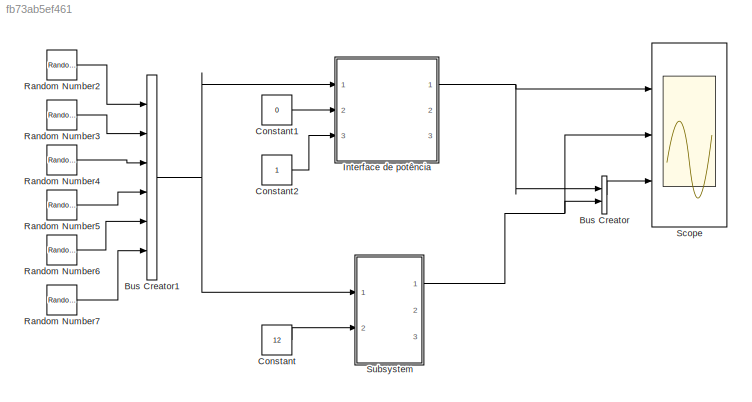
MODEL slx_fb73ab5ef461
KIND model
BLOCK [BusCreator] Bus Creator
  DisplayOption = bar
  Inputs = 2
  Ports = [2, 1]
BLOCK [BusCreator] Bus Creator1
  DisplayOption = bar
  Inputs = 6
  Ports = [6, 1]
BLOCK [Constant] Constant
  Value = 12
BLOCK [Constant] Constant1
  Value = 0
BLOCK [Constant] Constant2
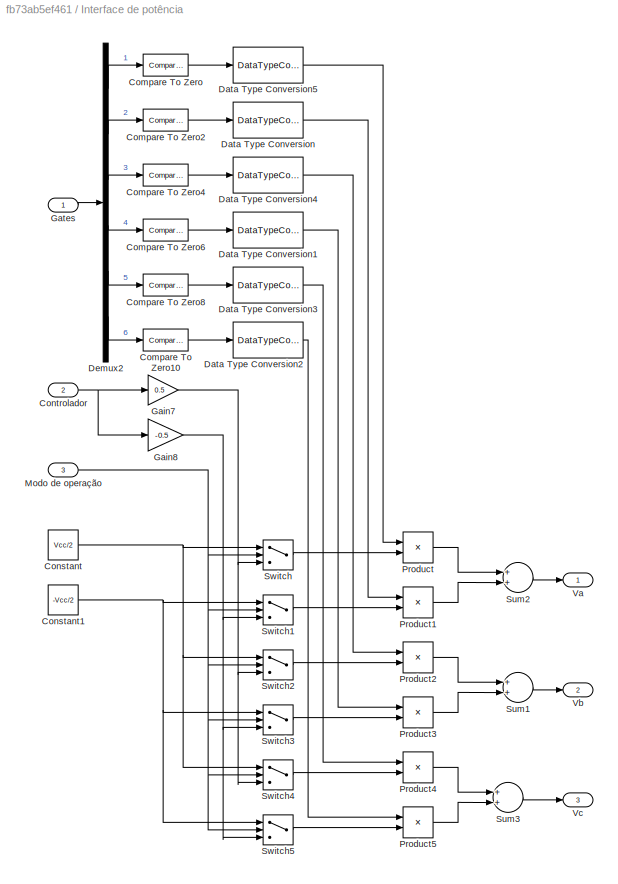
BLOCK [SubSystem] Interface de potência
  FunctionWithSeparateData = off
  MaskHideContents = off
  MinAlgLoopOccurrences = off
  Opaque = off
  Ports = [3, 3]
  PropExecContextOutsideSubsystem = off
  RTWSystemCode = Auto
  RequestExecContextInheritance = off
BLOCK [Reference] Interface de potência/Compare To Zero  REF=simulink/Logic and Bit
Operations/Compare
To Zero
  OutDataTypeStr = uint8
  Ports = [1, 1]
  SourceBlock = simulink/Logic and Bit\nOperations/Compare\nTo Zero
  SourceType = Compare To Zero
  ZeroCross = off
  relop = >
BLOCK [Reference] Interface de potência/Compare To Zero10  REF=simulink/Logic and Bit
Operations/Compare
To Zero
  OutDataTypeStr = boolean
  Ports = [1, 1]
  SourceBlock = simulink/Logic and Bit\nOperations/Compare\nTo Zero
  SourceType = Compare To Zero
  ZeroCross = off
  relop = >
BLOCK [Reference] Interface de potência/Compare To Zero2  REF=simulink/Logic and Bit
Operations/Compare
To Zero
  OutDataTypeStr = boolean
  Ports = [1, 1]
  SourceBlock = simulink/Logic and Bit\nOperations/Compare\nTo Zero
  SourceType = Compare To Zero
  ZeroCross = off
  relop = >
BLOCK [Reference] Interface de potência/Compare To Zero4  REF=simulink/Logic and Bit
Operations/Compare
To Zero
  OutDataTypeStr = uint8
  Ports = [1, 1]
  SourceBlock = simulink/Logic and Bit\nOperations/Compare\nTo Zero
  SourceType = Compare To Zero
  ZeroCross = off
  relop = >
BLOCK [Reference] Interface de potência/Compare To Zero6  REF=simulink/Logic and Bit
Operations/Compare
To Zero
  OutDataTypeStr = boolean
  Ports = [1, 1]
  SourceBlock = simulink/Logic and Bit\nOperations/Compare\nTo Zero
  SourceType = Compare To Zero
  ZeroCross = off
  relop = >
BLOCK [Reference] Interface de potência/Compare To Zero8  REF=simulink/Logic and Bit
Operations/Compare
To Zero
  OutDataTypeStr = boolean
  Ports = [1, 1]
  SourceBlock = simulink/Logic and Bit\nOperations/Compare\nTo Zero
  SourceType = Compare To Zero
  ZeroCross = off
  relop = >
BLOCK [Constant] Interface de potência/Constant
  Value = Vcc/2
BLOCK [Constant] Interface de potência/Constant1
  Value = -Vcc/2
BLOCK [Inport] Interface de potência/Controlador
  IconDisplay = Port number
  Port = 2
BLOCK [DataTypeConversion] Interface de potência/Data Type Conversion
  OutDataTypeStr = double
  RndMeth = Floor
  SaturateOnIntegerOverflow = off
BLOCK [DataTypeConversion] Interface de potência/Data Type Conversion1
  OutDataTypeStr = double
  RndMeth = Floor
  SaturateOnIntegerOverflow = off
BLOCK [DataTypeConversion] Interface de potência/Data Type Conversion2
  OutDataTypeStr = double
  RndMeth = Floor
  SaturateOnIntegerOverflow = off
BLOCK [DataTypeConversion] Interface de potência/Data Type Conversion3
  OutDataTypeStr = double
  RndMeth = Floor
  SaturateOnIntegerOverflow = off
BLOCK [DataTypeConversion] Interface de potência/Data Type Conversion4
  OutDataTypeStr = double
  RndMeth = Floor
  SaturateOnIntegerOverflow = off
BLOCK [DataTypeConversion] Interface de potência/Data Type Conversion5
  OutDataTypeStr = double
  RndMeth = Floor
  SaturateOnIntegerOverflow = off
BLOCK [Demux] Interface de potência/Demux2
  DisplayOption = bar
  Outputs = 6
  Ports = [1, 6]
BLOCK [Gain] Interface de potência/Gain7
  Gain = 0.5
  OutDataTypeStr = Inherit: Inherit via internal rule
  ParamDataTypeStr = Inherit: Inherit via internal rule
  SaturateOnIntegerOverflow = off
BLOCK [Gain] Interface de potência/Gain8
  Gain = -0.5
  OutDataTypeStr = Inherit: Inherit via internal rule
  ParamDataTypeStr = Inherit: Inherit via internal rule
  SaturateOnIntegerOverflow = off
BLOCK [Inport] Interface de potência/Gates
  IconDisplay = Port number
BLOCK [Inport] Interface de potência/Modo de operação
  IconDisplay = Port number
  Port = 3
BLOCK [Product] Interface de potência/Product
  InputSameDT = off
  OutDataTypeStr = Inherit: Inherit via internal rule
  Ports = [2, 1]
  SaturateOnIntegerOverflow = off
BLOCK [Product] Interface de potência/Product1
  InputSameDT = off
  OutDataTypeStr = Inherit: Inherit via internal rule
  Ports = [2, 1]
  SaturateOnIntegerOverflow = off
BLOCK [Product] Interface de potência/Product2
  InputSameDT = off
  OutDataTypeStr = Inherit: Inherit via internal rule
  Ports = [2, 1]
  SaturateOnIntegerOverflow = off
BLOCK [Product] Interface de potência/Product3
  InputSameDT = off
  OutDataTypeStr = Inherit: Inherit via internal rule
  Ports = [2, 1]
  SaturateOnIntegerOverflow = off
BLOCK [Product] Interface de potência/Product4
  InputSameDT = off
  OutDataTypeStr = Inherit: Inherit via internal rule
  Ports = [2, 1]
  SaturateOnIntegerOverflow = off
BLOCK [Product] Interface de potência/Product5
  InputSameDT = off
  OutDataTypeStr = Inherit: Inherit via internal rule
  Ports = [2, 1]
  SaturateOnIntegerOverflow = off
BLOCK [Sum] Interface de potência/Sum1
  InputSameDT = off
  OutDataTypeStr = Inherit: Inherit via internal rule
  Ports = [2, 1]
BLOCK [Sum] Interface de potência/Sum2
  InputSameDT = off
  OutDataTypeStr = Inherit: Inherit via internal rule
  Ports = [2, 1]
BLOCK [Sum] Interface de potência/Sum3
  InputSameDT = off
  OutDataTypeStr = Inherit: Inherit via internal rule
  Ports = [2, 1]
BLOCK [Switch] Interface de potência/Switch
  Criteria = u2 > Threshold
  InputSameDT = off
  SaturateOnIntegerOverflow = off
BLOCK [Switch] Interface de potência/Switch1
  Criteria = u2 > Threshold
  InputSameDT = off
  SaturateOnIntegerOverflow = off
BLOCK [Switch] Interface de potência/Switch2
  Criteria = u2 > Threshold
  InputSameDT = off
  SaturateOnIntegerOverflow = off
BLOCK [Switch] Interface de potência/Switch3
  Criteria = u2 > Threshold
  InputSameDT = off
  SaturateOnIntegerOverflow = off
BLOCK [Switch] Interface de potência/Switch4
  Criteria = u2 > Threshold
  InputSameDT = off
  SaturateOnIntegerOverflow = off
BLOCK [Switch] Interface de potência/Switch5
  Criteria = u2 > Threshold
  InputSameDT = off
  SaturateOnIntegerOverflow = off
BLOCK [Outport] Interface de potência/Va
  IconDisplay = Port number
BLOCK [Outport] Interface de potência/Vb
  IconDisplay = Port number
  Port = 2
BLOCK [Outport] Interface de potência/Vc
  IconDisplay = Port number
  Port = 3
BLOCK [RandomNumber] Random Number2
  SampleTime = 0.1
  Variance = 20
BLOCK [RandomNumber] Random Number3
  SampleTime = 0.1
  Seed = 1
  Variance = 20
BLOCK [RandomNumber] Random Number4
  SampleTime = 0.1
  Seed = 2
  Variance = 20
BLOCK [RandomNumber] Random Number5
  SampleTime = 0.1
  Seed = 3
  Variance = 20
BLOCK [RandomNumber] Random Number6
  SampleTime = 0.1
  Seed = 4
  Variance = 20
BLOCK [RandomNumber] Random Number7
  SampleTime = 0.1
  Seed = 5
  Variance = 20
BLOCK [Scope] Scope
  DataFormat = StructureWithTime
  Floating = off
  LimitDataPoints = off
  NumInputPorts = 3
  Ports = [3]
  SampleTime = 0
  ShowLegends = off
  TimeRange = 0.5
  YMax = 800000~800000~800000
  YMin = 0~0~0
  ZoomMode = yonly
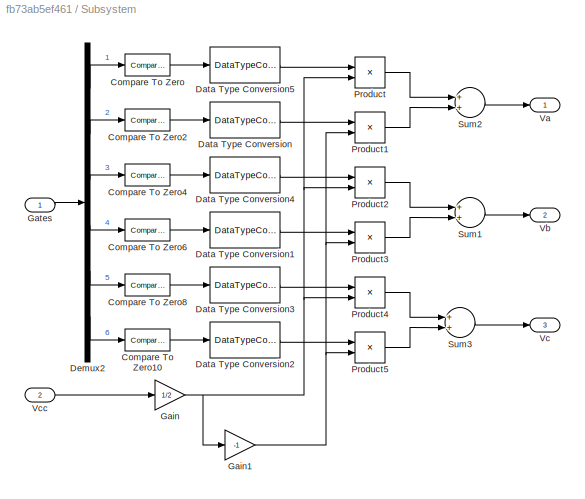
BLOCK [SubSystem] Subsystem
  FunctionWithSeparateData = off
  MaskHideContents = off
  MinAlgLoopOccurrences = off
  Opaque = off
  Ports = [2, 3]
  PropExecContextOutsideSubsystem = off
  RTWSystemCode = Auto
  RequestExecContextInheritance = off
BLOCK [Reference] Subsystem/Compare To Zero  REF=simulink/Logic and Bit
Operations/Compare
To Zero
  OutDataTypeStr = uint8
  Ports = [1, 1]
  SourceBlock = simulink/Logic and Bit\nOperations/Compare\nTo Zero
  SourceType = Compare To Zero
  ZeroCross = off
  relop = >
BLOCK [Reference] Subsystem/Compare To Zero10  REF=simulink/Logic and Bit
Operations/Compare
To Zero
  OutDataTypeStr = boolean
  Ports = [1, 1]
  SourceBlock = simulink/Logic and Bit\nOperations/Compare\nTo Zero
  SourceType = Compare To Zero
  ZeroCross = off
  relop = >
BLOCK [Reference] Subsystem/Compare To Zero2  REF=simulink/Logic and Bit
Operations/Compare
To Zero
  OutDataTypeStr = boolean
  Ports = [1, 1]
  SourceBlock = simulink/Logic and Bit\nOperations/Compare\nTo Zero
  SourceType = Compare To Zero
  ZeroCross = off
  relop = >
BLOCK [Reference] Subsystem/Compare To Zero4  REF=simulink/Logic and Bit
Operations/Compare
To Zero
  OutDataTypeStr = uint8
  Ports = [1, 1]
  SourceBlock = simulink/Logic and Bit\nOperations/Compare\nTo Zero
  SourceType = Compare To Zero
  ZeroCross = off
  relop = >
BLOCK [Reference] Subsystem/Compare To Zero6  REF=simulink/Logic and Bit
Operations/Compare
To Zero
  OutDataTypeStr = boolean
  Ports = [1, 1]
  SourceBlock = simulink/Logic and Bit\nOperations/Compare\nTo Zero
  SourceType = Compare To Zero
  ZeroCross = off
  relop = >
BLOCK [Reference] Subsystem/Compare To Zero8  REF=simulink/Logic and Bit
Operations/Compare
To Zero
  OutDataTypeStr = boolean
  Ports = [1, 1]
  SourceBlock = simulink/Logic and Bit\nOperations/Compare\nTo Zero
  SourceType = Compare To Zero
  ZeroCross = off
  relop = >
BLOCK [DataTypeConversion] Subsystem/Data Type Conversion
  OutDataTypeStr = double
  RndMeth = Floor
  SaturateOnIntegerOverflow = off
BLOCK [DataTypeConversion] Subsystem/Data Type Conversion1
  OutDataTypeStr = double
  RndMeth = Floor
  SaturateOnIntegerOverflow = off
BLOCK [DataTypeConversion] Subsystem/Data Type Conversion2
  OutDataTypeStr = double
  RndMeth = Floor
  SaturateOnIntegerOverflow = off
BLOCK [DataTypeConversion] Subsystem/Data Type Conversion3
  OutDataTypeStr = double
  RndMeth = Floor
  SaturateOnIntegerOverflow = off
BLOCK [DataTypeConversion] Subsystem/Data Type Conversion4
  OutDataTypeStr = double
  RndMeth = Floor
  SaturateOnIntegerOverflow = off
BLOCK [DataTypeConversion] Subsystem/Data Type Conversion5
  OutDataTypeStr = double
  RndMeth = Floor
  SaturateOnIntegerOverflow = off
BLOCK [Demux] Subsystem/Demux2
  DisplayOption = bar
  Outputs = 6
  Ports = [1, 6]
BLOCK [Gain] Subsystem/Gain
  Gain = 1/2
  OutDataTypeStr = Inherit: Inherit via internal rule
  ParamDataTypeStr = Inherit: Inherit via internal rule
  SaturateOnIntegerOverflow = off
BLOCK [Gain] Subsystem/Gain1
  Gain = -1
  OutDataTypeStr = Inherit: Inherit via internal rule
  ParamDataTypeStr = Inherit: Inherit via internal rule
  SaturateOnIntegerOverflow = off
BLOCK [Inport] Subsystem/Gates
  IconDisplay = Port number
BLOCK [Product] Subsystem/Product
  InputSameDT = off
  OutDataTypeStr = Inherit: Inherit via internal rule
  Ports = [2, 1]
  SaturateOnIntegerOverflow = off
BLOCK [Product] Subsystem/Product1
  InputSameDT = off
  OutDataTypeStr = Inherit: Inherit via internal rule
  Ports = [2, 1]
  SaturateOnIntegerOverflow = off
BLOCK [Product] Subsystem/Product2
  InputSameDT = off
  OutDataTypeStr = Inherit: Inherit via internal rule
  Ports = [2, 1]
  SaturateOnIntegerOverflow = off
BLOCK [Product] Subsystem/Product3
  InputSameDT = off
  OutDataTypeStr = Inherit: Inherit via internal rule
  Ports = [2, 1]
  SaturateOnIntegerOverflow = off
BLOCK [Product] Subsystem/Product4
  InputSameDT = off
  OutDataTypeStr = Inherit: Inherit via internal rule
  Ports = [2, 1]
  SaturateOnIntegerOverflow = off
BLOCK [Product] Subsystem/Product5
  InputSameDT = off
  OutDataTypeStr = Inherit: Inherit via internal rule
  Ports = [2, 1]
  SaturateOnIntegerOverflow = off
BLOCK [Sum] Subsystem/Sum1
  InputSameDT = off
  OutDataTypeStr = Inherit: Inherit via internal rule
  Ports = [2, 1]
BLOCK [Sum] Subsystem/Sum2
  InputSameDT = off
  OutDataTypeStr = Inherit: Inherit via internal rule
  Ports = [2, 1]
BLOCK [Sum] Subsystem/Sum3
  InputSameDT = off
  OutDataTypeStr = Inherit: Inherit via internal rule
  Ports = [2, 1]
BLOCK [Outport] Subsystem/Va
  IconDisplay = Port number
BLOCK [Outport] Subsystem/Vb
  IconDisplay = Port number
  Port = 2
BLOCK [Outport] Subsystem/Vc
  IconDisplay = Port number
  Port = 3
BLOCK [Inport] Subsystem/Vcc
  IconDisplay = Port number
  Port = 2
NET Bus Creator1:1 -> Interface de potência:1, Subsystem:1
LINE Bus Creator:1 -> Scope:3
LINE Constant1:1 -> Interface de potência:2
LINE Constant2:1 -> Interface de potência:3
LINE Constant:1 -> Subsystem:2
LINE Interface de potência/Compare To Zero10:1 -> Interface de potência/Data Type Conversion2:1
LINE Interface de potência/Compare To Zero2:1 -> Interface de potência/Data Type Conversion:1
LINE Interface de potência/Compare To Zero4:1 -> Interface de potência/Data Type Conversion4:1
LINE Interface de potência/Compare To Zero6:1 -> Interface de potência/Data Type Conversion1:1
LINE Interface de potência/Compare To Zero8:1 -> Interface de potência/Data Type Conversion3:1
LINE Interface de potência/Compare To Zero:1 -> Interface de potência/Data Type Conversion5:1
NET Interface de potência/Constant1:1 -> Interface de potência/Switch1:1, Interface de potência/Switch3:1, Interface de potência/Switch5:1
NET Interface de potência/Constant:1 -> Interface de potência/Switch2:1, Interface de potência/Switch4:1, Interface de potência/Switch:1
NET Interface de potência/Controlador:1 -> Interface de potência/Gain7:1, Interface de potência/Gain8:1
LINE Interface de potência/Data Type Conversion1:1 -> Interface de potência/Product3:1
LINE Interface de potência/Data Type Conversion2:1 -> Interface de potência/Product5:1
LINE Interface de potência/Data Type Conversion3:1 -> Interface de potência/Product4:1
LINE Interface de potência/Data Type Conversion4:1 -> Interface de potência/Product2:1
LINE Interface de potência/Data Type Conversion5:1 -> Interface de potência/Product:1
LINE Interface de potência/Data Type Conversion:1 -> Interface de potência/Product1:1
LINE Interface de potência/Demux2:1 -> Interface de potência/Compare To Zero:1
LINE Interface de potência/Demux2:2 -> Interface de potência/Compare To Zero2:1
LINE Interface de potência/Demux2:3 -> Interface de potência/Compare To Zero4:1
LINE Interface de potência/Demux2:4 -> Interface de potência/Compare To Zero6:1
LINE Interface de potência/Demux2:5 -> Interface de potência/Compare To Zero8:1
LINE Interface de potência/Demux2:6 -> Interface de potência/Compare To Zero10:1
NET Interface de potência/Gain7:1 -> Interface de potência/Switch2:3, Interface de potência/Switch4:3, Interface de potência/Switch:3
NET Interface de potência/Gain8:1 -> Interface de potência/Switch1:3, Interface de potência/Switch3:3, Interface de potência/Switch5:3
LINE Interface de potência/Gates:1 -> Interface de potência/Demux2:1
NET Interface de potência/Modo de operação:1 -> Interface de potência/Switch1:2, Interface de potência/Switch2:2, Interface de potência/Switch3:2, Interface de potência/Switch4:2, Interface de potência/Switch5:2, Interface de potência/Switch:2
LINE Interface de potência/Product1:1 -> Interface de potência/Sum2:2
LINE Interface de potência/Product2:1 -> Interface de potência/Sum1:1
LINE Interface de potência/Product3:1 -> Interface de potência/Sum1:2
LINE Interface de potência/Product4:1 -> Interface de potência/Sum3:1
LINE Interface de potência/Product5:1 -> Interface de potência/Sum3:2
LINE Interface de potência/Product:1 -> Interface de potência/Sum2:1
LINE Interface de potência/Sum1:1 -> Interface de potência/Vb:1
LINE Interface de potência/Sum2:1 -> Interface de potência/Va:1
LINE Interface de potência/Sum3:1 -> Interface de potência/Vc:1
LINE Interface de potência/Switch1:1 -> Interface de potência/Product1:2
LINE Interface de potência/Switch2:1 -> Interface de potência/Product2:2
LINE Interface de potência/Switch3:1 -> Interface de potência/Product3:2
LINE Interface de potência/Switch4:1 -> Interface de potência/Product4:2
LINE Interface de potência/Switch5:1 -> Interface de potência/Product5:2
LINE Interface de potência/Switch:1 -> Interface de potência/Product:2
NET Interface de potência:1 -> Bus Creator:1, Scope:1
LINE Random Number2:1 -> Bus Creator1:1
LINE Random Number3:1 -> Bus Creator1:2
LINE Random Number4:1 -> Bus Creator1:3
LINE Random Number5:1 -> Bus Creator1:4
LINE Random Number6:1 -> Bus Creator1:5
LINE Random Number7:1 -> Bus Creator1:6
LINE Subsystem/Compare To Zero10:1 -> Subsystem/Data Type Conversion2:1
LINE Subsystem/Compare To Zero2:1 -> Subsystem/Data Type Conversion:1
LINE Subsystem/Compare To Zero4:1 -> Subsystem/Data Type Conversion4:1
LINE Subsystem/Compare To Zero6:1 -> Subsystem/Data Type Conversion1:1
LINE Subsystem/Compare To Zero8:1 -> Subsystem/Data Type Conversion3:1
LINE Subsystem/Compare To Zero:1 -> Subsystem/Data Type Conversion5:1
LINE Subsystem/Data Type Conversion1:1 -> Subsystem/Product3:1
LINE Subsystem/Data Type Conversion2:1 -> Subsystem/Product5:1
LINE Subsystem/Data Type Conversion3:1 -> Subsystem/Product4:1
LINE Subsystem/Data Type Conversion4:1 -> Subsystem/Product2:1
LINE Subsystem/Data Type Conversion5:1 -> Subsystem/Product:1
LINE Subsystem/Data Type Conversion:1 -> Subsystem/Product1:1
LINE Subsystem/Demux2:1 -> Subsystem/Compare To Zero:1
LINE Subsystem/Demux2:2 -> Subsystem/Compare To Zero2:1
LINE Subsystem/Demux2:3 -> Subsystem/Compare To Zero4:1
LINE Subsystem/Demux2:4 -> Subsystem/Compare To Zero6:1
LINE Subsystem/Demux2:5 -> Subsystem/Compare To Zero8:1
LINE Subsystem/Demux2:6 -> Subsystem/Compare To Zero10:1
NET Subsystem/Gain1:1 -> Subsystem/Product1:2, Subsystem/Product3:2, Subsystem/Product5:2
NET Subsystem/Gain:1 -> Subsystem/Gain1:1, Subsystem/Product2:2, Subsystem/Product4:2, Subsystem/Product:2
LINE Subsystem/Gates:1 -> Subsystem/Demux2:1
LINE Subsystem/Product1:1 -> Subsystem/Sum2:2
LINE Subsystem/Product2:1 -> Subsystem/Sum1:1
LINE Subsystem/Product3:1 -> Subsystem/Sum1:2
LINE Subsystem/Product4:1 -> Subsystem/Sum3:1
LINE Subsystem/Product5:1 -> Subsystem/Sum3:2
LINE Subsystem/Product:1 -> Subsystem/Sum2:1
LINE Subsystem/Sum1:1 -> Subsystem/Vb:1
LINE Subsystem/Sum2:1 -> Subsystem/Va:1
LINE Subsystem/Sum3:1 -> Subsystem/Vc:1
LINE Subsystem/Vcc:1 -> Subsystem/Gain:1
NET Subsystem:1 -> Bus Creator:2, Scope:2
note: NET lines group one-source signal fan-out (src -> all destinations, sorted); 1:1 wires keep LINE
